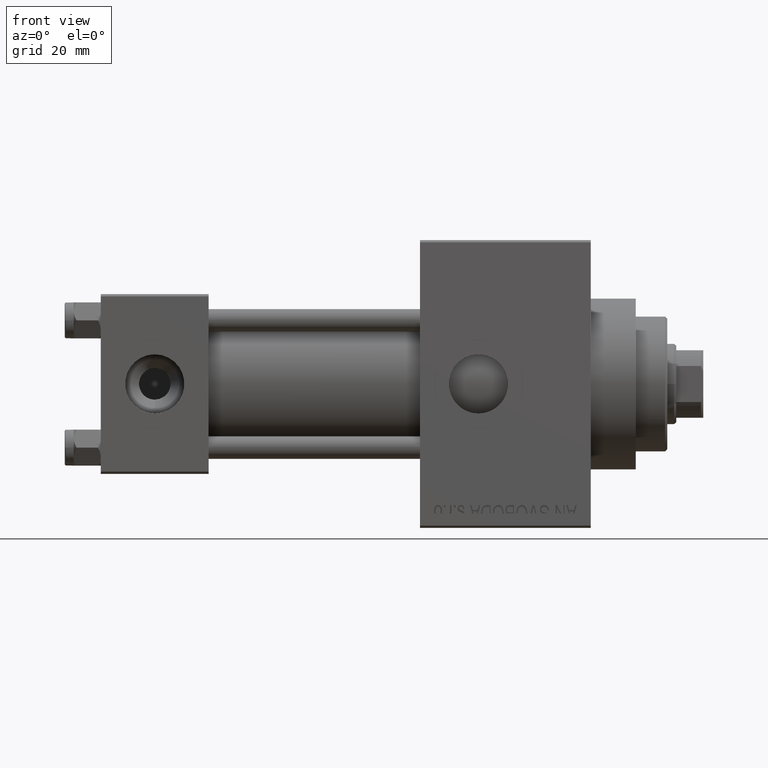
[diagram: clean part render]
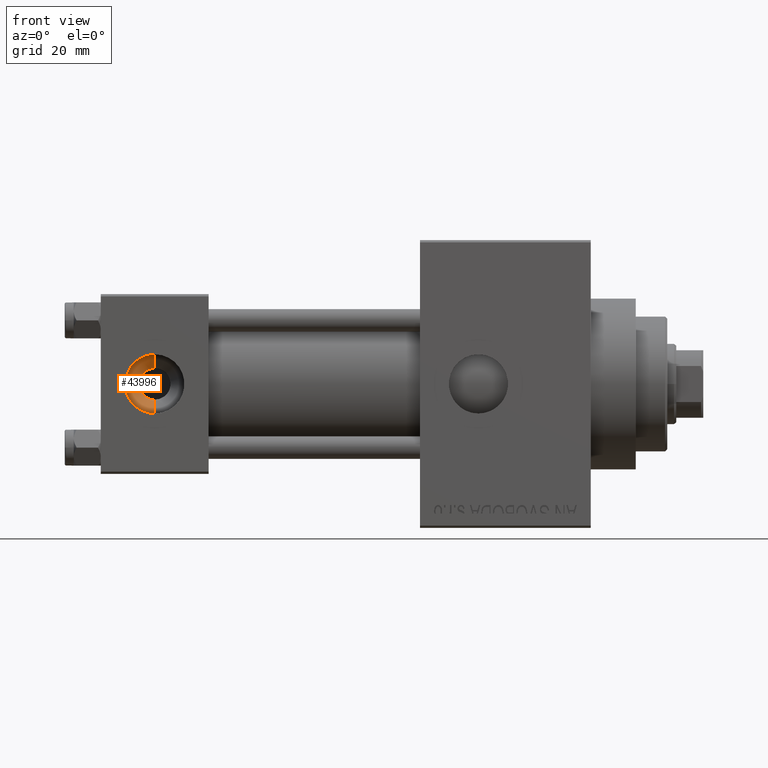
[diagram: same view with one face highlighted and labeled with its STEP entity id]
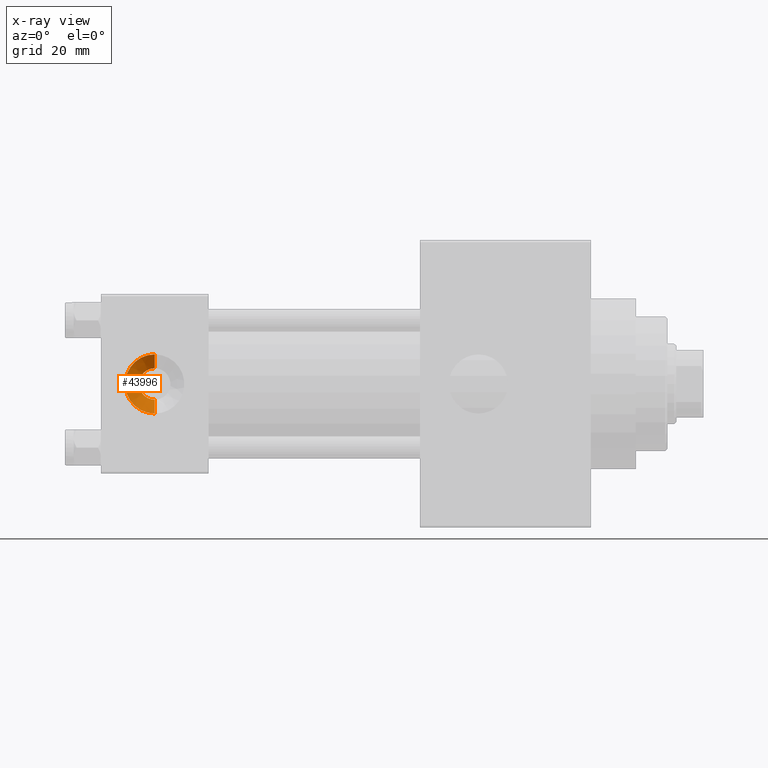
[diagram: x-ray of the same camera — body ghosted, the highlighted face saturated]
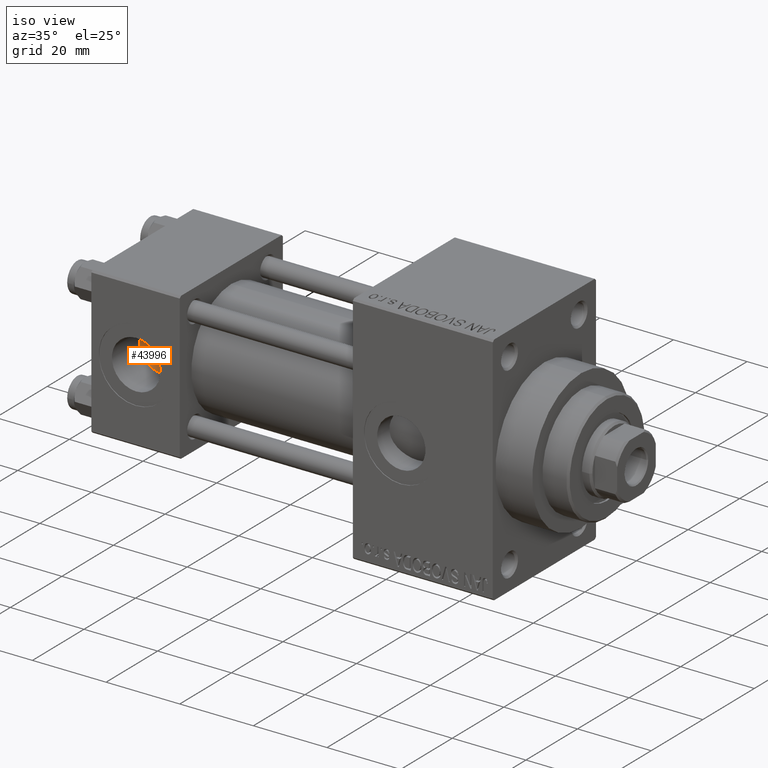
[diagram: same view with one face highlighted and labeled with its STEP entity id]
A machine part, front view. The second image highlights one B-rep face of the part: STEP entity #43996.
The next image is the same camera in x-ray: the body ghosted, the highlighted face saturated — about 0% of this face is hidden behind the body in this view.
A second angle (iso view) of the same face is appended — the face is thin or edge-on in the first view.
In plain terms, the highlighted conical surface has half-angle 45 deg.
Its self-contained STEP definition (entity closure, byte-faithful):
#787 = CIRCLE ( 'NONE', #31611, 3.500000000000000000 ) ;
#1938 = CARTESIAN_POINT ( 'NONE',  ( 12.00000000000000000, -9.039999999999977831, -6.579999999999999183 ) ) ;
#3840 = CARTESIAN_POINT ( 'NONE',  ( 12.00000000000000000, -9.039999999999977831, -7.840950111415154262E-16 ) ) ;
#4561 = DIRECTION ( 'NONE',  ( 0.000000000000000000, 0.000000000000000000, -1.000000000000000000 ) ) ;
#5184 = AXIS2_PLACEMENT_3D ( 'NONE', #41191, #44180, #48624 ) ;
#6194 = EDGE_LOOP ( 'NONE', ( #44829, #39154, #6386, #26648 ) ) ;
#6386 = ORIENTED_EDGE ( 'NONE', *, *, #22543, .F. ) ;
#7154 = EDGE_CURVE ( 'NONE', #29040, #28167, #787, .T. ) ;
#8853 = CARTESIAN_POINT ( 'NONE',  ( 12.00000000000000000, -5.959999999999951115, 3.499999999999999556 ) ) ;
#12115 = VECTOR ( 'NONE', #35578, 1000.000000000000000 ) ;
#14554 = CIRCLE ( 'NONE', #45368, 6.579999999999998295 ) ;
#14909 = VERTEX_POINT ( 'NONE', #16701 ) ;
#16701 = CARTESIAN_POINT ( 'NONE',  ( 12.00000000000000000, -9.039999999999977831, 6.579999999999997407 ) ) ;
#18403 = CARTESIAN_POINT ( 'NONE',  ( 12.00000000000000000, -5.959999999999951115, -5.169475958410845698E-16 ) ) ;
#18884 = DIRECTION ( 'NONE',  ( 0.000000000000000000, 0.000000000000000000, -1.000000000000000000 ) ) ;
#19472 = VECTOR ( 'NONE', #28933, 1000.000000000000114 ) ;
#21774 = EDGE_CURVE ( 'NONE', #29040, #14909, #43752, .T. ) ;
#22543 = EDGE_CURVE ( 'NONE', #22831, #14909, #14554, .T. ) ;
#22831 = VERTEX_POINT ( 'NONE', #1938 ) ;
#23377 = DIRECTION ( 'NONE',  ( -0.000000000000000000, 1.000000000000000000, 8.673617379884039170E-17 ) ) ;
#25771 = CONICAL_SURFACE ( 'NONE', #5184, 3.500000000000000000, 0.7853981633974433940 ) ;
#26087 = FACE_OUTER_BOUND ( 'NONE', #6194, .T. ) ;
#26648 = ORIENTED_EDGE ( 'NONE', *, *, #45518, .F. ) ;
#28167 = VERTEX_POINT ( 'NONE', #39389 ) ;
#28933 = DIRECTION ( 'NONE',  ( 0.000000000000000000, -0.7071067811865507924, -0.7071067811865441310 ) ) ;
#29040 = VERTEX_POINT ( 'NONE', #35920 ) ;
#31611 = AXIS2_PLACEMENT_3D ( 'NONE', #18403, #48841, #18884 ) ;
#33132 = CARTESIAN_POINT ( 'NONE',  ( 12.00000000000000000, -5.959999999999951115, -3.500000000000000444 ) ) ;
#35578 = DIRECTION ( 'NONE',  ( 8.659560562354892183E-17, -0.7071067811865511255, 0.7071067811865440200 ) ) ;
#35920 = CARTESIAN_POINT ( 'NONE',  ( 12.00000000000000000, -5.959999999999951115, 3.499999999999999556 ) ) ;
#36373 = LINE ( 'NONE', #33132, #19472 ) ;
#39154 = ORIENTED_EDGE ( 'NONE', *, *, #21774, .T. ) ;
#39389 = CARTESIAN_POINT ( 'NONE',  ( 12.00000000000000000, -5.959999999999951115, -3.500000000000000444 ) ) ;
#41191 = CARTESIAN_POINT ( 'NONE',  ( 12.00000000000000000, -5.959999999999951115, -5.169475958410845698E-16 ) ) ;
#43752 = LINE ( 'NONE', #8853, #12115 ) ;
#43996 = ADVANCED_FACE ( 'NONE', ( #26087 ), #25771, .F. ) ;
#44180 = DIRECTION ( 'NONE',  ( 0.000000000000000000, -1.000000000000000000, -8.673617379884039170E-17 ) ) ;
#44829 = ORIENTED_EDGE ( 'NONE', *, *, #7154, .F. ) ;
#45368 = AXIS2_PLACEMENT_3D ( 'NONE', #3840, #23377, #4561 ) ;
#45518 = EDGE_CURVE ( 'NONE', #28167, #22831, #36373, .T. ) ;
#48624 = DIRECTION ( 'NONE',  ( 0.000000000000000000, 0.000000000000000000, -1.000000000000000000 ) ) ;
#48841 = DIRECTION ( 'NONE',  ( 0.000000000000000000, -1.000000000000000000, -8.673617379884039170E-17 ) ) ;